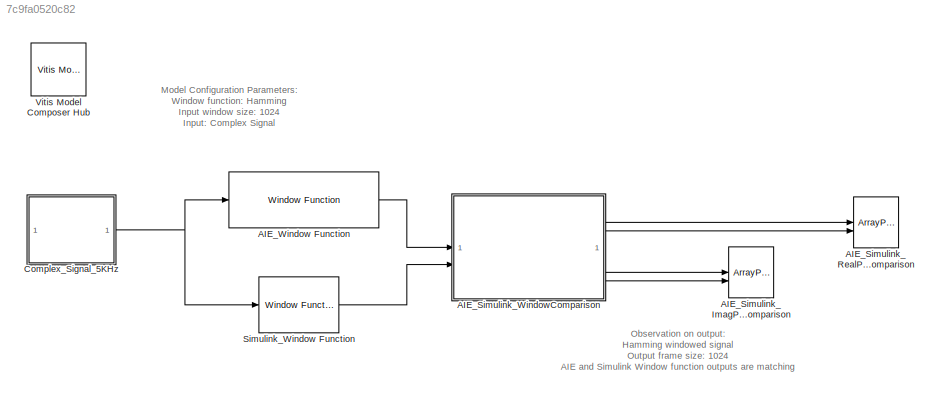
MODEL slx_7c9fa0520c82
KIND model
CONFIG AbsTol = auto
CONFIG EnableMultiTasking = off
CONFIG FixedStep = auto
CONFIG MaxStep = auto
CONFIG MinStep = auto
CONFIG RelTol = 1e-3
CONFIG SampleTimeConstraint = Unconstrained
CONFIG SolverName = VariableStepAuto
CONFIG StartTime = 0.0
CONFIG StopTime = 0.2
BLOCK [ArrayPlot] AIE_Simulink_ImagPart_Comparison
  AxesScaling = Manual
  GraphicalSettings = {"Style":{"BackgroundColor":[0.15686274509803921,0.15686274509803921,0.15686274509803921],"AxesColor":[0,0,0],"LabelsColor":[0.68627450980392157,0.68627450980392157,0.68627450980392157],"LineStyle":["-","-"],"LineColor":[[1,1,0.066666666666666666],[0.074509803921568626,0.62352941176470589,1]],"LineWidth":[1.5,1.5],"Marker":["none","none"],"FontSize":"small"},"Cursors":{"Enabled":false,"XLocation":...<+392ch>
  NumInputPorts = 2
  PlotType = Line
  ShowLegend = on
  WasSavedAsWebScope = on
  WindowPosition = [240.000000,110.000000,800.000000,500.000000,]
  YLimits = [-5,5]
BLOCK [ArrayPlot] AIE_Simulink_RealPart_Comparison
  GraphicalSettings = {"Style":{"BackgroundColor":[0.15686274509803921,0.15686274509803921,0.15686274509803921],"AxesColor":[0,0,0],"LabelsColor":[0.68627450980392157,0.68627450980392157,0.68627450980392157],"LineStyle":["-","-"],"LineColor":[[1,1,0.066666666666666666],[0.074509803921568626,0.62352941176470589,1]],"LineWidth":[1.5,1.5],"Marker":["none","none"],"FontSize":"small"},"Cursors":{"Enabled":false,"XLocation":...<+392ch>
  NumInputPorts = 2
  PlotType = Line
  ShowLegend = on
  WasSavedAsWebScope = on
  WindowPosition = [5.000000,41.000000,1272.000000,651.000000,]
  YLimits = [-1.2886,1.2856]
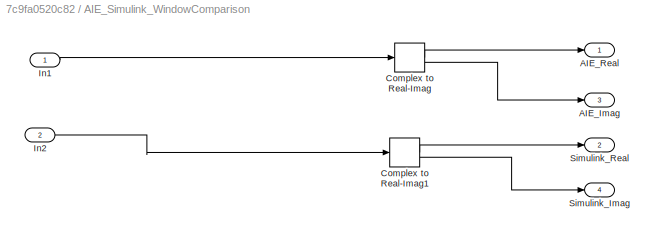
BLOCK [SubSystem] AIE_Simulink_WindowComparison
BLOCK [Outport] AIE_Simulink_WindowComparison/AIE_Imag
  Port = 3
BLOCK [Outport] AIE_Simulink_WindowComparison/AIE_Real
BLOCK [ComplexToRealImag] AIE_Simulink_WindowComparison/Complex to Real-Imag
BLOCK [ComplexToRealImag] AIE_Simulink_WindowComparison/Complex to Real-Imag1
BLOCK [Inport] AIE_Simulink_WindowComparison/In1
BLOCK [Inport] AIE_Simulink_WindowComparison/In2
  Port = 2
BLOCK [Outport] AIE_Simulink_WindowComparison/Simulink_Imag
  Port = 4
BLOCK [Outport] AIE_Simulink_WindowComparison/Simulink_Real
  Port = 2
BLOCK [Reference] AIE_Window Function  REF=aieDSP/Window Function
  SourceBlock = aieDSP/Window Function
  SourceType = Window Function
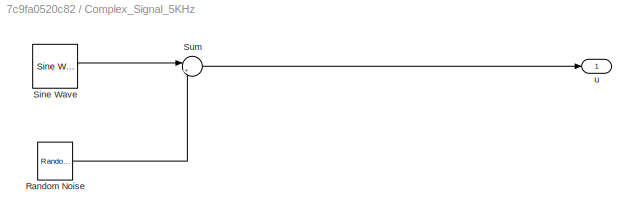
BLOCK [SubSystem] Complex_Signal_5KHz
BLOCK [Reference] Complex_Signal_5KHz/Random Noise  REF=dspobslib/Random
Source
  SourceBlock = dspobslib/Random\nSource
  SourceType = Random Source Obsolete
  UserDataPersistent = on
BLOCK [Reference] Complex_Signal_5KHz/Sine Wave  REF=dspsrcs4/Sine Wave
  SourceBlock = dspsrcs4/Sine Wave
  SourceType = Sine Wave
BLOCK [Sum] Complex_Signal_5KHz/Sum
  Inputs = |++
BLOCK [Outport] Complex_Signal_5KHz/u
BLOCK [Reference] Simulink_Window Function  REF=dspsigops/Window
Function
  SourceBlock = dspsigops/Window\nFunction
  SourceType = Window Function
BLOCK [Reference] Vitis Model Composer Hub  REF=vmcUtilities/Vitis Model Composer Hub
  SourceBlock = vmcUtilities/Vitis Model Composer Hub
  SourceType = VMC Hub
  Tag = genX
  UserDataPersistent = on
ANNOTATION (root): Model Configuration Parameters: Window function: Hamming Input window size: 1024 Input: Complex Signal
ANNOTATION (root): Observation on output: Hamming windowed signal Output frame size: 1024 AIE and Simulink Window function outputs are matching
LINE AIE_Simulink_WindowComparison/Complex to Real-Imag1:1 -> AIE_Simulink_WindowComparison/Simulink_Real:1
LINE AIE_Simulink_WindowComparison/Complex to Real-Imag1:2 -> AIE_Simulink_WindowComparison/Simulink_Imag:1
LINE AIE_Simulink_WindowComparison/Complex to Real-Imag:1 -> AIE_Simulink_WindowComparison/AIE_Real:1
LINE AIE_Simulink_WindowComparison/Complex to Real-Imag:2 -> AIE_Simulink_WindowComparison/AIE_Imag:1
LINE AIE_Simulink_WindowComparison/In1:1 -> AIE_Simulink_WindowComparison/Complex to Real-Imag:1
LINE AIE_Simulink_WindowComparison/In2:1 -> AIE_Simulink_WindowComparison/Complex to Real-Imag1:1
LINE AIE_Simulink_WindowComparison:1 -> AIE_Simulink_RealPart_Comparison:1
LINE AIE_Simulink_WindowComparison:2 -> AIE_Simulink_RealPart_Comparison:2
LINE AIE_Simulink_WindowComparison:3 -> AIE_Simulink_ImagPart_Comparison:1
LINE AIE_Simulink_WindowComparison:4 -> AIE_Simulink_ImagPart_Comparison:2
LINE AIE_Window Function:1 -> AIE_Simulink_WindowComparison:1
LINE Complex_Signal_5KHz/Random Noise:1 -> Complex_Signal_5KHz/Sum:2
LINE Complex_Signal_5KHz/Sine Wave:1 -> Complex_Signal_5KHz/Sum:1
LINE Complex_Signal_5KHz/Sum:1 -> Complex_Signal_5KHz/u:1
NET Complex_Signal_5KHz:1 -> AIE_Window Function:1, Simulink_Window Function:1
LINE Simulink_Window Function:1 -> AIE_Simulink_WindowComparison:2
note: NET lines group one-source signal fan-out (src -> all destinations, sorted); 1:1 wires keep LINE
